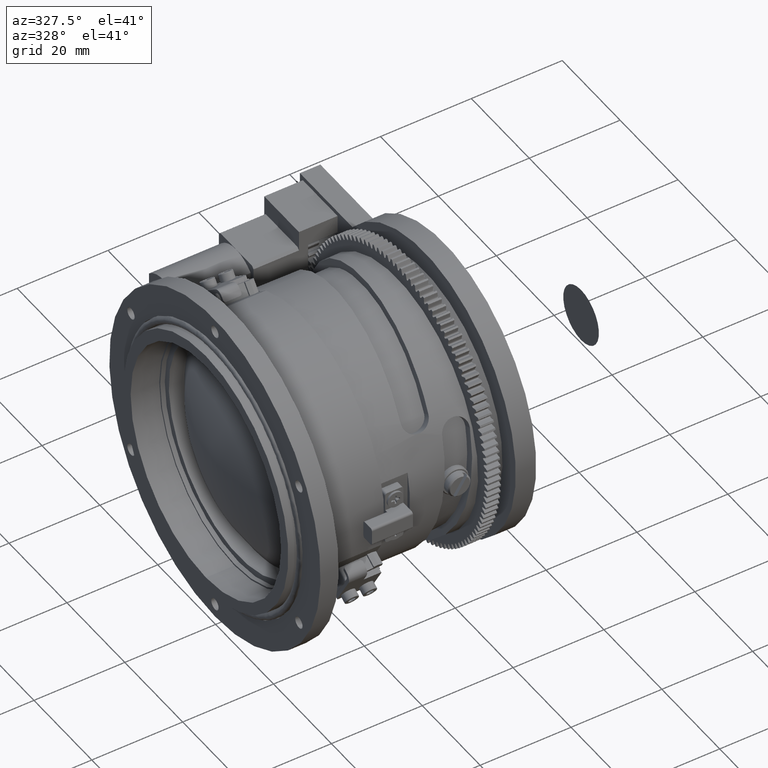
[diagram: clean part render]
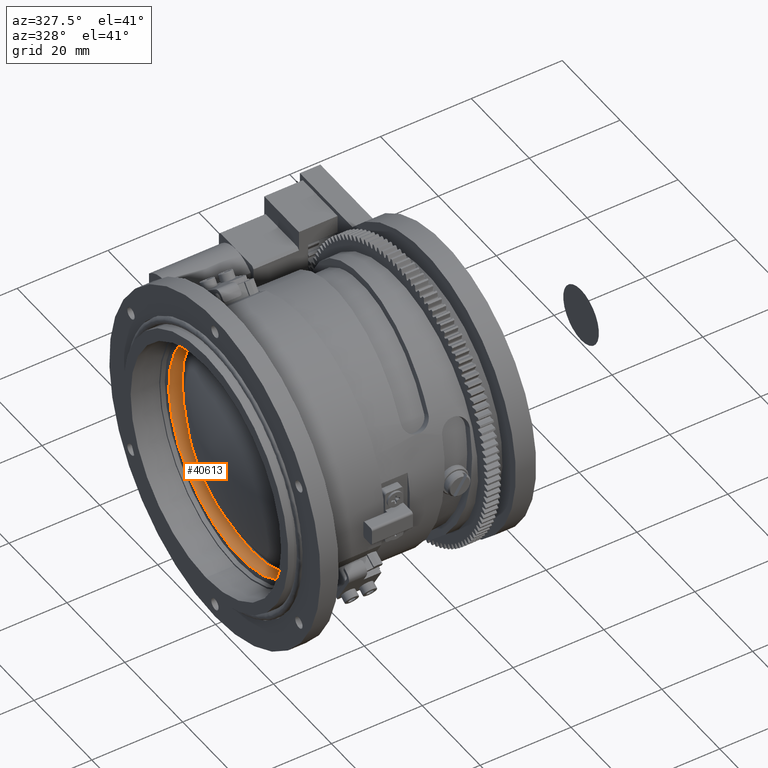
[diagram: same view with one face highlighted and labeled with its STEP entity id]
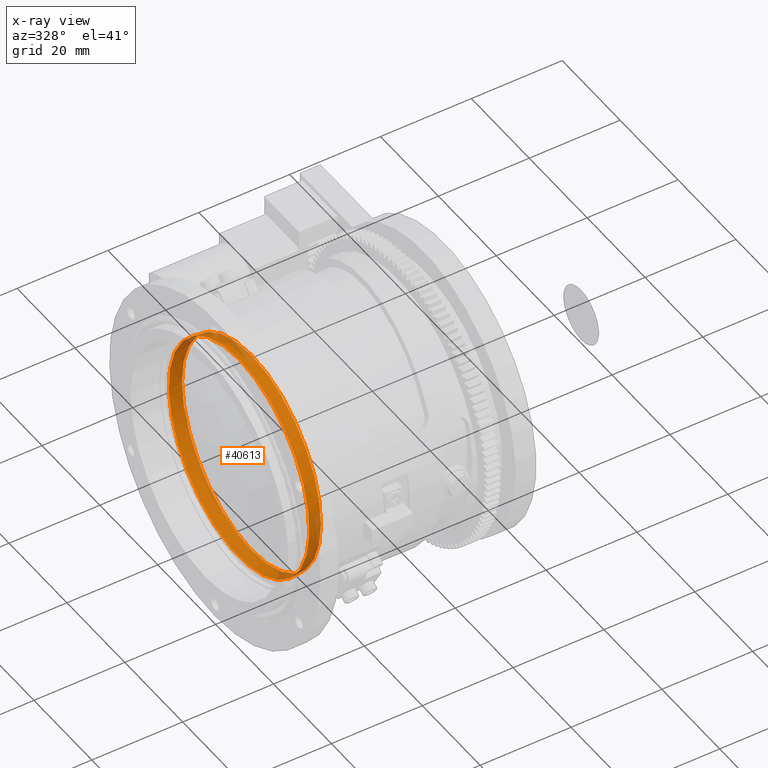
[diagram: x-ray of the same camera — body ghosted, the highlighted face saturated]
A machine part, auxiliary view. The second image highlights one B-rep face of the part: STEP entity #40613.
The next image is the same camera in x-ray: the body ghosted, the highlighted face saturated — about 13% of this face is hidden behind the body in this view.
In plain terms, the highlighted conical surface has half-angle 5.888 deg.
Its self-contained STEP definition (entity closure, byte-faithful):
#239 = EDGE_LOOP ( 'NONE', ( #1880 ) ) ;
#916 = ORIENTED_EDGE ( 'NONE', *, *, #37515, .F. ) ;
#1880 = ORIENTED_EDGE ( 'NONE', *, *, #17040, .F. ) ;
#4588 = DIRECTION ( 'NONE',  ( -1.000000000000000000, 0.000000000000000000, 0.000000000000000000 ) ) ;
#6007 = AXIS2_PLACEMENT_3D ( 'NONE', #52864, #4588, #22193 ) ;
#9193 = FACE_BOUND ( 'NONE', #36779, .T. ) ;
#13851 = CARTESIAN_POINT ( 'NONE',  ( 5.140548000000005224, 0.000000000000000000, 24.28345623432316458 ) ) ;
#17040 = EDGE_CURVE ( 'NONE', #48561, #48561, #33079, .T. ) ;
#22193 = DIRECTION ( 'NONE',  ( 0.000000000000000000, 0.000000000000000000, 1.000000000000000000 ) ) ;
#25458 = DIRECTION ( 'NONE',  ( 0.000000000000000000, 0.000000000000000000, 1.000000000000000000 ) ) ;
#29040 = CONICAL_SURFACE ( 'NONE', #6007, 24.28345623432316458, 0.1027573855534168745 ) ;
#29784 = CARTESIAN_POINT ( 'NONE',  ( 5.140548000000005224, 0.000000000000000000, 0.000000000000000000 ) ) ;
#33079 = CIRCLE ( 'NONE', #46067, 24.28345623432316458 ) ;
#36779 = EDGE_LOOP ( 'NONE', ( #916 ) ) ;
#37515 = EDGE_CURVE ( 'NONE', #51100, #51100, #53021, .T. ) ;
#38680 = CARTESIAN_POINT ( 'NONE',  ( 7.889331951098217388, 0.000000000000000000, 24.00000000000000000 ) ) ;
#39671 = DIRECTION ( 'NONE',  ( 1.000000000000000000, -0.000000000000000000, -0.000000000000000000 ) ) ;
#40613 = ADVANCED_FACE ( 'NONE', ( #57211, #9193 ), #29040, .F. ) ;
#43646 = DIRECTION ( 'NONE',  ( -4.336808689942017736E-16, 0.000000000000000000, 1.000000000000000000 ) ) ;
#45639 = AXIS2_PLACEMENT_3D ( 'NONE', #47122, #47704, #43646 ) ;
#46067 = AXIS2_PLACEMENT_3D ( 'NONE', #29784, #39671, #25458 ) ;
#47122 = CARTESIAN_POINT ( 'NONE',  ( 7.889331951098227158, 0.000000000000000000, 0.000000000000000000 ) ) ;
#47704 = DIRECTION ( 'NONE',  ( -1.000000000000000000, 0.000000000000000000, 0.000000000000000000 ) ) ;
#48561 = VERTEX_POINT ( 'NONE', #13851 ) ;
#51100 = VERTEX_POINT ( 'NONE', #38680 ) ;
#52864 = CARTESIAN_POINT ( 'NONE',  ( 5.140548000000005224, 0.000000000000000000, 0.000000000000000000 ) ) ;
#53021 = CIRCLE ( 'NONE', #45639, 24.00000000000000000 ) ;
#57211 = FACE_OUTER_BOUND ( 'NONE', #239, .T. ) ;